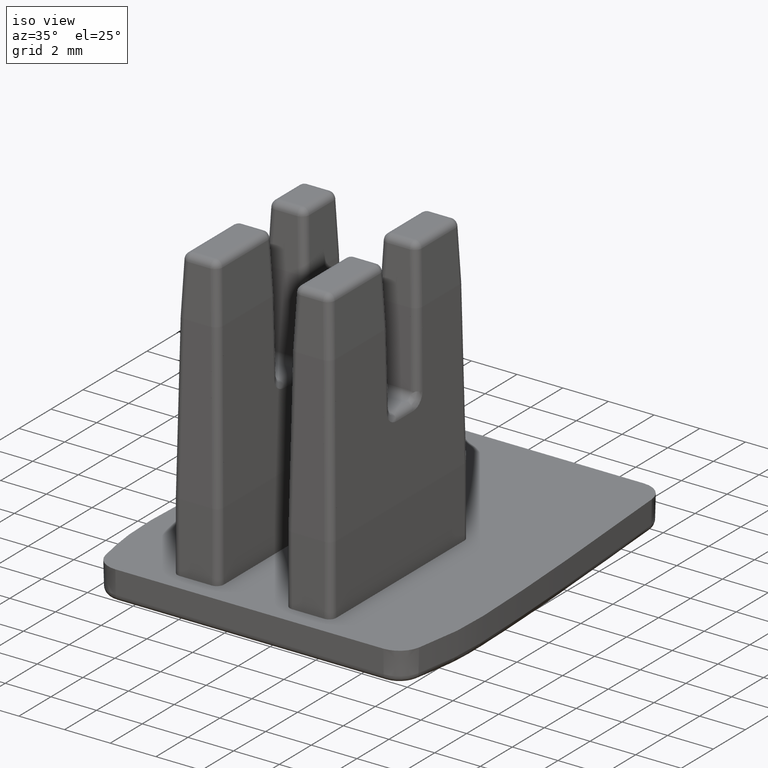
[diagram: clean part render]
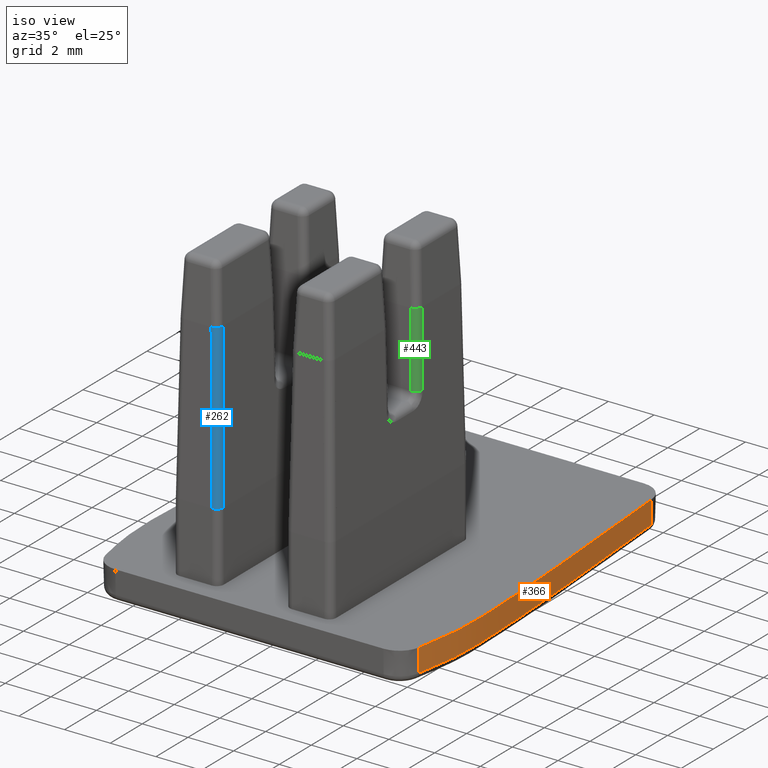
[diagram: same view with three faces highlighted in distinct colors, each labeled with its STEP entity id]
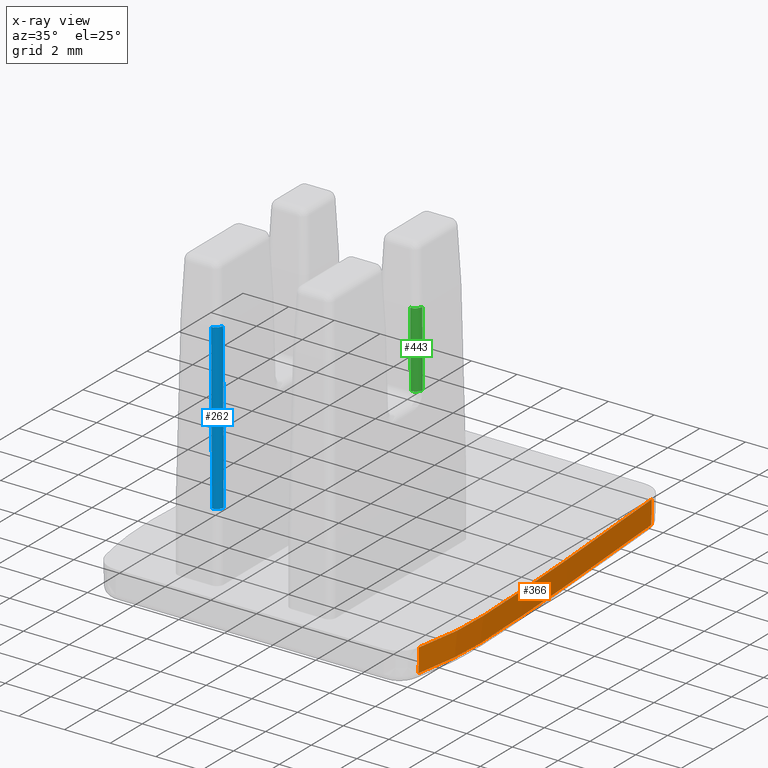
[diagram: x-ray of the same camera — body ghosted, the three highlighted faces saturated]
A machine part, iso view with three faces highlighted in distinct colors.
The next image is the same camera in x-ray (body ghosted, the three faces saturated) — at least one of them is partly hidden behind the body in this view.
Their STEP definitions:

[orange] entity #366 — the highlighted face is a freeform B-spline surface patch.
#366 = ADVANCED_FACE ( 'NONE', ( #1840 ), #545, .F. ) ;
#464 = EDGE_CURVE ( 'NONE', #3331, #3346, #537, .T. ) ;
#470 = EDGE_CURVE ( 'NONE', #3408, #3338, #530, .T. ) ;
#477 = EDGE_CURVE ( 'NONE', #3331, #3408, #535, .T. ) ;
#484 = EDGE_CURVE ( 'NONE', #3346, #3338, #536, .T. ) ;
#530 = B_SPLINE_CURVE_WITH_KNOTS ( 'NONE', 1,
 ( #814, #816 ),
 .UNSPECIFIED., .F., .F.,
 ( 2, 2 ),
 ( 0.9629988041788623000, 0.9993572903024886500 ),
 .UNSPECIFIED. ) ;
#535 = B_SPLINE_CURVE_WITH_KNOTS ( 'NONE', 3,
 ( #860, #883, #900, #884, #857, #877, #890, #856, #896, #861, #897, #891, #867, #892 ),
 .UNSPECIFIED., .F., .F.,
 ( 4, 2, 2, 2, 2, 2, 4 ),
 ( -6.000000000027529400E-008, 0.0009408673750029836000, 0.001881794750005967500, 0.002822722125008951700, 0.003763649500011935500, 0.007527359000023855900, 0.01505477800004769900 ),
 .UNSPECIFIED. ) ;
#536 = B_SPLINE_CURVE_WITH_KNOTS ( 'NONE', 3,
 ( #855, #876, #908, #944, #924, #909, #938, #911, #913, #945, #951, #946, #943, #952, #910, #959, #905, #960, #906, #937, #933, #918, #932, #925, #939, #955, #940, #961, #927, #947, #935, #941, #928, #929, #953, #954, #903, #948, #912, #915, #916, #956, #914, #904, #949, #934, #950, #942, #917, #920, #926, #957, #958, #907, #919, #921, #922, #923, #931, #1011, #1007, #1008 ),
 .UNSPECIFIED., .F., .F.,
 ( 4, 1, 1, 1, 1, 1, 2, 2, 1, 1, 1, 1, 2, 2, 1, 1, 1, 1, 1, 2, 2, 1, 1, 1, 1, 1, 1, 1, 2, 2, 1, 1, 1, 1, 1, 1, 1, 1, 2, 2, 1, 1, 1, 1, 1, 2, 2, 4 ),
 ( 0.0000000000000000000, 0.06249999999996985700, 0.09374999999995511900, 0.1093749999999481400, 0.1171874999999446400, 0.1210937499999429100, 0.1230468749999424300, 0.1249999999999419600, 0.1562499999999477600, 0.1718749999999508400, 0.1796874999999524000, 0.1835937499999528200, 0.1855468749999533700, 0.1874999999999539300, 0.2187499999999739400, 0.2343749999999839300, 0.2421874999999889000, 0.2460937499999910600, 0.2480468749999920900, 0.2490234374999925300, 0.2499999999999930100, 0.3749999999999970000, 0.4374999999999988300, 0.4687499999999997200, 0.4843750000000000600, 0.4921875000000003300, 0.4960937500000001700, 0.4980468749999997800, 0.4990234374999997200, 0.4999999999999996700, 0.6249999999999307200, 0.6874999999998964200, 0.7187499999998793200, 0.7343749999998707700, 0.7421874999998665500, 0.7460937499998644400, 0.7480468749998633300, 0.7490234374998630000, 0.7495117187498630000, 0.7499999999998630000, 0.8124999999999050800, 0.8437499999999263900, 0.8593749999999369400, 0.8671874999999422700, 0.8710937499999447100, 0.8730468749999457100, 0.8749999999999468200, 1.000000000000000000 ),
 .UNSPECIFIED. ) ;
#537 = B_SPLINE_CURVE_WITH_KNOTS ( 'NONE', 3,
 ( #850, #843, #846, #808 ),
 .UNSPECIFIED., .F., .F.,
 ( 4, 4 ),
 ( -0.001027351623817846000, 0.0000000000000000000 ),
 .UNSPECIFIED. ) ;
#545 = B_SPLINE_SURFACE_WITH_KNOTS ( 'NONE', 1, 3, ( 
 ( #1820, #1816, #1851, #1834, #1866, #1830, #1821, #1817, #1844, #1867, #1836, #1852, #1853, #1829, #1862, #1846, #1871, #1869, #1859, #1873, #1854, #1857, #1831 ),
 ( #1872, #1868, #1870, #1818, #1858, #1819, #1855, #1822, #1832, #1838, #1839, #1841, #1847, #1860, #1856, #1863, #1883, #1911, #1888, #1897, #1920, #1904, #1899 ) ),
 .UNSPECIFIED., .F., .F., .F.,
 ( 2, 2 ),
 ( 4, 2, 2, 2, 2, 2, 2, 2, 2, 3, 4 ),
 ( 0.0000000000000000000, 1.000000000000000000 ),
 ( 0.0000000000000000000, 0.5000000000000000000, 0.6250000000000000000, 0.6875000000000000000, 0.7187500000000000000, 0.7500000000000000000, 0.8125000000000000000, 0.8437500000000000000, 0.8750000000000000000, 1.000000000000000000, 1.010000000000000000 ),
 .UNSPECIFIED. ) ;
#808 = CARTESIAN_POINT ( 'NONE',  ( -231.4764434864795000, -20.00816516961819900, -36.24964550397354700 ) ) ;
#814 = CARTESIAN_POINT ( 'NONE',  ( -231.8812790038134900, -4.915975247343370200, -37.27699997542119800 ) ) ;
#816 = CARTESIAN_POINT ( 'NONE',  ( -231.8545060922604900, -4.913953368818859200, -36.24964550397354700 ) ) ;
#843 = CARTESIAN_POINT ( 'NONE',  ( -231.4940311148647500, -20.00465359442336300, -36.93454658651877800 ) ) ;
#846 = CARTESIAN_POINT ( 'NONE',  ( -231.4852373006722500, -20.00640938202077700, -36.59209604524616600 ) ) ;
#850 = CARTESIAN_POINT ( 'NONE',  ( -231.5027975091205100, -20.00290282242325200, -37.27699785862525100 ) ) ;
#855 = CARTESIAN_POINT ( 'NONE',  ( -231.4764434864795000, -20.00816516961819900, -36.24964550397354700 ) ) ;
#856 = CARTESIAN_POINT ( 'NONE',  ( -231.1468998555790800, -16.88526760609805400, -37.27699859103533000 ) ) ;
#857 = CARTESIAN_POINT ( 'NONE',  ( -231.2401636500811200, -18.45114353077253000, -37.27699858887221000 ) ) ;
#860 = CARTESIAN_POINT ( 'NONE',  ( -231.5027975091205100, -20.00290282242325200, -37.27699785862525100 ) ) ;
#861 = CARTESIAN_POINT ( 'NONE',  ( -231.1920125866276700, -14.99313133844807700, -37.27699859349856100 ) ) ;
#867 = CARTESIAN_POINT ( 'NONE',  ( -231.6909947880110100, -7.433993489473913000, -37.27699858845922200 ) ) ;
#876 = CARTESIAN_POINT ( 'NONE',  ( -231.4044956740329400, -19.64816453552575800, -36.24964550397354700 ) ) ;
#877 = CARTESIAN_POINT ( 'NONE',  ( -231.1778861121187800, -17.82687406467527000, -37.27699858804906100 ) ) ;
#883 = CARTESIAN_POINT ( 'NONE',  ( -231.4413496842523200, -19.69533812898570000, -37.27699858846190800 ) ) ;
#884 = CARTESIAN_POINT ( 'NONE',  ( -231.2826991975468300, -18.76232857696406200, -37.27699915983712500 ) ) ;
#890 = CARTESIAN_POINT ( 'NONE',  ( -231.1591816720439600, -17.51370318630225500, -37.27699858589899400 ) ) ;
#891 = CARTESIAN_POINT ( 'NONE',  ( -231.4763587967317200, -9.950383391224338700, -37.27699859004405900 ) ) ;
#892 = CARTESIAN_POINT ( 'NONE',  ( -231.8812790038134900, -4.915975247343370200, -37.27699997542119800 ) ) ;
#896 = CARTESIAN_POINT ( 'NONE',  ( -231.1515383411002600, -16.57015157544586600, -37.27699858720939800 ) ) ;
#897 = CARTESIAN_POINT ( 'NONE',  ( -231.2510370479302800, -13.73138313048279400, -37.27699858766950300 ) ) ;
#900 = CARTESIAN_POINT ( 'NONE',  ( -231.3830911993837800, -19.38342198717357300, -37.27699915450181600 ) ) ;
#903 = CARTESIAN_POINT ( 'NONE',  ( -231.2985417314164600, -12.48200921731654100, -36.24964550397355400 ) ) ;
#904 = CARTESIAN_POINT ( 'NONE',  ( -231.5494857998496300, -8.852726751006827000, -36.24964550397353900 ) ) ;
#905 = CARTESIAN_POINT ( 'NONE',  ( -231.1265669032016200, -17.22093931266918100, -36.24964550397356100 ) ) ;
#906 = CARTESIAN_POINT ( 'NONE',  ( -231.1236098522109000, -17.07099215004015800, -36.24964550397354700 ) ) ;
#907 = CARTESIAN_POINT ( 'NONE',  ( -231.6791488461912800, -7.178297631104446600, -36.24964550397354700 ) ) ;
#908 = CARTESIAN_POINT ( 'NONE',  ( -231.3138084076095700, -19.14483560955518400, -36.24964550397355400 ) ) ;
#909 = CARTESIAN_POINT ( 'NONE',  ( -231.1943165593481800, -18.25765358336899200, -36.24964550397354700 ) ) ;
#910 = CARTESIAN_POINT ( 'NONE',  ( -231.1276891103008800, -17.26997632751585200, -36.24964550397354700 ) ) ;
#911 = CARTESIAN_POINT ( 'NONE',  ( -231.1855740830106900, -18.17450548377179600, -36.24964550397355400 ) ) ;
#912 = CARTESIAN_POINT ( 'NONE',  ( -231.3301486623427100, -11.95151107690991300, -36.24964550397354700 ) ) ;
#913 = CARTESIAN_POINT ( 'NONE',  ( -231.1838948224690300, -18.15802395513788200, -36.24964550397355400 ) ) ;
#914 = CARTESIAN_POINT ( 'NONE',  ( -231.5373758091472800, -9.012361806651899300, -36.24964550397353900 ) ) ;
#915 = CARTESIAN_POINT ( 'NONE',  ( -231.3862018922427200, -11.08916405157859800, -36.24964550397355400 ) ) ;
#916 = CARTESIAN_POINT ( 'NONE',  ( -231.4683890555185700, -9.938554433701467500, -36.24964550397354700 ) ) ;
#917 = CARTESIAN_POINT ( 'NONE',  ( -231.5613289319456700, -8.697367159496323600, -36.24964550397355400 ) ) ;
#918 = CARTESIAN_POINT ( 'NONE',  ( -231.1289435130762500, -16.41485394494217700, -36.24964550397354700 ) ) ;
#919 = CARTESIAN_POINT ( 'NONE',  ( -231.6935385215177200, -6.994121111255874500, -36.24964550397353900 ) ) ;
#920 = CARTESIAN_POINT ( 'NONE',  ( -231.5616607756324800, -8.693024517955896300, -36.24964550397355400 ) ) ;
#921 = CARTESIAN_POINT ( 'NONE',  ( -231.7009462987912500, -6.899352905562928100, -36.24964550397353900 ) ) ;
#922 = CARTESIAN_POINT ( 'NONE',  ( -231.7041666903964200, -6.858163686172666500, -36.24964550397355400 ) ) ;
#923 = CARTESIAN_POINT ( 'NONE',  ( -231.7063237581145400, -6.830576590113986800, -36.24964550397353900 ) ) ;
#924 = CARTESIAN_POINT ( 'NONE',  ( -231.2076347479177800, -18.37636828057633700, -36.24964550397355400 ) ) ;
#925 = CARTESIAN_POINT ( 'NONE',  ( -231.1316746419669000, -16.29642754496840200, -36.24964550397354700 ) ) ;
#926 = CARTESIAN_POINT ( 'NONE',  ( -231.5758415852974700, -8.507467347126997500, -36.24964550397355400 ) ) ;
#927 = CARTESIAN_POINT ( 'NONE',  ( -231.1794568777634400, -14.76961384670631900, -36.24964550397354700 ) ) ;
#928 = CARTESIAN_POINT ( 'NONE',  ( -231.2903700144432000, -12.62028733071779400, -36.24964550397354700 ) ) ;
#929 = CARTESIAN_POINT ( 'NONE',  ( -231.2947512830732300, -12.54590545924320500, -36.24964550397355400 ) ) ;
#931 = CARTESIAN_POINT ( 'NONE',  ( -231.7075125010030400, -6.815374792754949100, -36.24964550397353900 ) ) ;
#932 = CARTESIAN_POINT ( 'NONE',  ( -231.1307144256909400, -16.33627472893267900, -36.24964550397355400 ) ) ;
#933 = CARTESIAN_POINT ( 'NONE',  ( -231.1259997675950600, -16.56755176928492500, -36.24964550397354700 ) ) ;
#934 = CARTESIAN_POINT ( 'NONE',  ( -231.5586830800823200, -8.732012405934868900, -36.24964550397354700 ) ) ;
#935 = CARTESIAN_POINT ( 'NONE',  ( -231.2650093346346700, -13.06286947957991500, -36.24964550397354700 ) ) ;
#937 = CARTESIAN_POINT ( 'NONE',  ( -231.1225045956256000, -16.85510498726542400, -36.24964550397355400 ) ) ;
#938 = CARTESIAN_POINT ( 'NONE',  ( -231.1881264744969800, -18.19929943379631300, -36.24964550397355400 ) ) ;
#939 = CARTESIAN_POINT ( 'NONE',  ( -231.1321021832211500, -16.27923069984952800, -36.24964550397355400 ) ) ;
#940 = CARTESIAN_POINT ( 'NONE',  ( -231.1325688023270000, -16.26073313962251300, -36.24964550397354700 ) ) ;
#941 = CARTESIAN_POINT ( 'NONE',  ( -231.2817398960363300, -12.76852120509763800, -36.24964550397353900 ) ) ;
#942 = CARTESIAN_POINT ( 'NONE',  ( -231.5608874523261700, -8.703145708173366300, -36.24964550397355400 ) ) ;
#943 = CARTESIAN_POINT ( 'NONE',  ( -231.1343037659119400, -17.47586465613678500, -36.24964550397353200 ) ) ;
#944 = CARTESIAN_POINT ( 'NONE',  ( -231.2380232005246200, -18.62182326723884900, -36.24964550397353900 ) ) ;
#945 = CARTESIAN_POINT ( 'NONE',  ( -231.1832247594121800, -18.15139496137746600, -36.24964550397354700 ) ) ;
#946 = CARTESIAN_POINT ( 'NONE',  ( -231.1479195952169900, -17.75021308127248800, -36.24964550397354700 ) ) ;
#947 = CARTESIAN_POINT ( 'NONE',  ( -231.2336669134797900, -13.64308813143487200, -36.24964550397355400 ) ) ;
#948 = CARTESIAN_POINT ( 'NONE',  ( -231.2989347227971800, -12.47540818278716700, -36.24964550397355400 ) ) ;
#949 = CARTESIAN_POINT ( 'NONE',  ( -231.5556063878898400, -8.772344621276779700, -36.24964550397353200 ) ) ;
#950 = CARTESIAN_POINT ( 'NONE',  ( -231.5602255257216200, -8.711811010644702000, -36.24964550397356100 ) ) ;
#951 = CARTESIAN_POINT ( 'NONE',  ( -231.1666379136270300, -17.98512003877985100, -36.24964550397356100 ) ) ;
#952 = CARTESIAN_POINT ( 'NONE',  ( -231.1295514034696100, -17.33861786655798900, -36.24964550397354700 ) ) ;
#953 = CARTESIAN_POINT ( 'NONE',  ( -231.2969584697447900, -12.50864828993472600, -36.24964550397354700 ) ) ;
#954 = CARTESIAN_POINT ( 'NONE',  ( -231.2979079538233100, -12.49266673875155900, -36.24964550397353900 ) ) ;
#955 = CARTESIAN_POINT ( 'NONE',  ( -231.1323907707225400, -16.26773958520077200, -36.24964550397355400 ) ) ;
#956 = CARTESIAN_POINT ( 'NONE',  ( -231.5136805692546300, -9.327115102681917200, -36.24964550397354700 ) ) ;
#957 = CARTESIAN_POINT ( 'NONE',  ( -231.6047354124054600, -8.133279787151261400, -36.24964550397353900 ) ) ;
#958 = CARTESIAN_POINT ( 'NONE',  ( -231.6520730124200900, -7.525211104652372600, -36.24964550397354700 ) ) ;
#959 = CARTESIAN_POINT ( 'NONE',  ( -231.1270011035256000, -17.24055463701507000, -36.24964550397355400 ) ) ;
#960 = CARTESIAN_POINT ( 'NONE',  ( -231.1263293814768900, -17.20946835119680100, -36.24964550397356100 ) ) ;
#961 = CARTESIAN_POINT ( 'NONE',  ( -231.1475193727385100, -15.67707316533020500, -36.24964550397353900 ) ) ;
#1007 = CARTESIAN_POINT ( 'NONE',  ( -231.8200770233380600, -5.368270208030304900, -36.24964550397354700 ) ) ;
#1008 = CARTESIAN_POINT ( 'NONE',  ( -231.8545060922604900, -4.913953368818859200, -36.24964550397354700 ) ) ;
#1011 = CARTESIAN_POINT ( 'NONE',  ( -231.7714422631224200, -5.997887771923745800, -36.24964550397356800 ) ) ;
#1175 = CARTESIAN_POINT ( 'NONE',  ( -231.5027975091205100, -20.00290282242325200, -37.27699785862525100 ) ) ;
#1210 = CARTESIAN_POINT ( 'NONE',  ( -231.8545060922604900, -4.913953368818859200, -36.24964550397354700 ) ) ;
#1211 = CARTESIAN_POINT ( 'NONE',  ( -231.4764434864795000, -20.00816516961819900, -36.24964550397354700 ) ) ;
#1245 = CARTESIAN_POINT ( 'NONE',  ( -231.8812790038134900, -4.915975247343370200, -37.27699997542119800 ) ) ;
#1816 = CARTESIAN_POINT ( 'NONE',  ( -231.6636197488500100, -7.432926039325679700, -36.23148773845550600 ) ) ;
#1817 = CARTESIAN_POINT ( 'NONE',  ( -231.1559535071575100, -15.46942287865099900, -36.23148773846255500 ) ) ;
#1818 = CARTESIAN_POINT ( 'NONE',  ( -231.9998311935889900, -13.14445304505444100, -64.48769953427699900 ) ) ;
#1819 = CARTESIAN_POINT ( 'NONE',  ( -231.9246500496070100, -14.71166890443868200, -64.48769953427680000 ) ) ;
#1820 = CARTESIAN_POINT ( 'NONE',  ( -231.8539261897395000, -4.913909558393180000, -36.23148773846425300 ) ) ;
#1821 = CARTESIAN_POINT ( 'NONE',  ( -231.1726858294339900, -14.99636273826560100, -36.23148773846419600 ) ) ;
#1822 = CARTESIAN_POINT ( 'NONE',  ( -231.8954482438285300, -15.49438458374290000, -64.48769953427670000 ) ) ;
#1829 = CARTESIAN_POINT ( 'NONE',  ( -231.1287895738365100, -17.35875146195545000, -36.23148773846345000 ) ) ;
#1830 = CARTESIAN_POINT ( 'NONE',  ( -231.1853730445300000, -14.68087710957875900, -36.23148773846210700 ) ) ;
#1831 = CARTESIAN_POINT ( 'NONE',  ( -231.5056585695930100, -20.15717558527694900, -36.23148773845625200 ) ) ;
#1832 = CARTESIAN_POINT ( 'NONE',  ( -231.8903867344515100, -15.64972552313889900, -64.48769953427670000 ) ) ;
#1834 = CARTESIAN_POINT ( 'NONE',  ( -231.2610377944405100, -13.10360691630226000, -36.23148773846120500 ) ) ;
#1836 = CARTESIAN_POINT ( 'NONE',  ( -231.1362069152494900, -16.09994768401005100, -36.23148773846244800 ) ) ;
#1838 = CARTESIAN_POINT ( 'NONE',  ( -231.8806663113060200, -15.96524128714454900, -64.48769953427670000 ) ) ;
#1839 = CARTESIAN_POINT ( 'NONE',  ( -231.8758104657729900, -16.12158255846949800, -64.48769953427658700 ) ) ;
#1840 = FACE_OUTER_BOUND ( 'NONE', #3549, .T. ) ;
#1841 = CARTESIAN_POINT ( 'NONE',  ( -231.8639247096770100, -16.58614977473779800, -64.48769953427658700 ) ) ;
#1844 = CARTESIAN_POINT ( 'NONE',  ( -231.1508185055000100, -15.62707645491194900, -36.23148773846359900 ) ) ;
#1846 = CARTESIAN_POINT ( 'NONE',  ( -231.1534515448855100, -17.82888738017419800, -36.23148773846175200 ) ) ;
#1847 = CARTESIAN_POINT ( 'NONE',  ( -231.8596281421035000, -16.88991272649565200, -64.48769953427439800 ) ) ;
#1851 = CARTESIAN_POINT ( 'NONE',  ( -231.4488273576089900, -9.951091445811719900, -36.23148773847215400 ) ) ;
#1852 = CARTESIAN_POINT ( 'NONE',  ( -231.1241131068329700, -16.57264684849014800, -36.23148773846410400 ) ) ;
#1853 = CARTESIAN_POINT ( 'NONE',  ( -231.1195234865934900, -16.88753964941495400, -36.23148773846180900 ) ) ;
#1854 = CARTESIAN_POINT ( 'NONE',  ( -231.4858345077034900, -20.05790467074015400, -36.23148773846045100 ) ) ;
#1855 = CARTESIAN_POINT ( 'NONE',  ( -231.9120539732755000, -15.02490350553880000, -64.48769953427670000 ) ) ;
#1856 = CARTESIAN_POINT ( 'NONE',  ( -231.8738387214784800, -17.48168221552499800, -64.48769953427759600 ) ) ;
#1857 = CARTESIAN_POINT ( 'NONE',  ( -231.4957465386484900, -20.10754012800854800, -36.23148773845834800 ) ) ;
#1858 = CARTESIAN_POINT ( 'NONE',  ( -231.9665062360500100, -13.77156161886850000, -64.48769953427680000 ) ) ;
#1859 = CARTESIAN_POINT ( 'NONE',  ( -231.3520220899484900, -19.38782599761664800, -36.23148773848890200 ) ) ;
#1860 = CARTESIAN_POINT ( 'NONE',  ( -231.8683951403334900, -17.33574420070310000, -64.48769953427759600 ) ) ;
#1862 = CARTESIAN_POINT ( 'NONE',  ( -231.1346291371555100, -17.51563068834550300, -36.23148773846394700 ) ) ;
#1863 = CARTESIAN_POINT ( 'NONE',  ( -231.8914077097520000, -17.77407855329849800, -64.48769953427539300 ) ) ;
#1866 = CARTESIAN_POINT ( 'NONE',  ( -231.2275122182150000, -13.73441381326654000, -36.23148773846539700 ) ) ;
#1867 = CARTESIAN_POINT ( 'NONE',  ( -231.1411064288115000, -15.94232130054424900, -36.23148773846249800 ) ) ;
#1868 = CARTESIAN_POINT ( 'NONE',  ( -232.4010721041964900, -7.493432195007529600, -64.48769953426040000 ) ) ;
#1869 = CARTESIAN_POINT ( 'NONE',  ( -231.2440737170204800, -18.76625616490275000, -36.23148773846280300 ) ) ;
#1870 = CARTESIAN_POINT ( 'NONE',  ( -232.1866821837660100, -10.00769385979008100, -64.48769953427699900 ) ) ;
#1871 = CARTESIAN_POINT ( 'NONE',  ( -231.1661785533140100, -17.98528264384789900, -36.23148773846280300 ) ) ;
#1872 = CARTESIAN_POINT ( 'NONE',  ( -232.5917386039579900, -4.969649747052259600, -64.48769953427789400 ) ) ;
#1873 = CARTESIAN_POINT ( 'NONE',  ( -231.4759224767584800, -20.00826921347174900, -36.23148773846260400 ) ) ;
#1883 = CARTESIAN_POINT ( 'NONE',  ( -231.9033316207130000, -17.92078352198395300, -64.48769953427640200 ) ) ;
#1888 = CARTESIAN_POINT ( 'NONE',  ( -232.0800231905149900, -19.25500924004669700, -64.48769953431130400 ) ) ;
#1897 = CARTESIAN_POINT ( 'NONE',  ( -232.2015110831644900, -19.86337165841749900, -64.48769953427620300 ) ) ;
#1899 = CARTESIAN_POINT ( 'NONE',  ( -232.2306681774005000, -20.00937863882650100, -64.48769953426779000 ) ) ;
#1904 = CARTESIAN_POINT ( 'NONE',  ( -232.2209491459885000, -19.96070964535685000, -64.48769953427059000 ) ) ;
#1911 = CARTESIAN_POINT ( 'NONE',  ( -231.9767701315775000, -18.65707483148034700, -64.48769953427640200 ) ) ;
#1920 = CARTESIAN_POINT ( 'NONE',  ( -232.2112301145764700, -19.91204065188720000, -64.48769953427340300 ) ) ;
#2613 = ORIENTED_EDGE ( 'NONE', *, *, #470, .T. ) ;
#2629 = ORIENTED_EDGE ( 'NONE', *, *, #464, .F. ) ;
#2647 = ORIENTED_EDGE ( 'NONE', *, *, #484, .F. ) ;
#2658 = ORIENTED_EDGE ( 'NONE', *, *, #477, .T. ) ;
#3331 = VERTEX_POINT ( 'NONE', #1175 ) ;
#3338 = VERTEX_POINT ( 'NONE', #1210 ) ;
#3346 = VERTEX_POINT ( 'NONE', #1211 ) ;
#3408 = VERTEX_POINT ( 'NONE', #1245 ) ;
#3549 = EDGE_LOOP ( 'NONE', ( #2629, #2658, #2613, #2647 ) ) ;

[blue] entity #262 — the highlighted cylindrical surface (edge-blend (fillet) strip) has radius 0.3045 mm, axis along (0.0174, -0.0174, -0.9997).
#12 = EDGE_CURVE ( 'NONE', #3421, #3356, #3774, .T. ) ;
#18 = EDGE_CURVE ( 'NONE', #3396, #3400, #3782, .T. ) ;
#68 = EDGE_CURVE ( 'NONE', #3378, #3380, #4674, .T. ) ;
#76 = EDGE_CURVE ( 'NONE', #3378, #3396, #3960, .T. ) ;
#177 = EDGE_CURVE ( 'NONE', #3400, #3421, #4659, .T. ) ;
#262 = ADVANCED_FACE ( 'NONE', ( #4579 ), #4550, .T. ) ;
#486 = EDGE_CURVE ( 'NONE', #3356, #3380, #991, .T. ) ;
#601 = VECTOR ( 'NONE', #3841, 1000.000000000000000 ) ;
#605 = VECTOR ( 'NONE', #3787, 1000.000000000000000 ) ;
#640 = VECTOR ( 'NONE', #4014, 1000.000000000000000 ) ;
#974 = DIRECTION ( 'NONE',  ( 0.01744974916068264100, -0.01744974916079379200, -0.9996954598818855700 ) ) ;
#979 = CARTESIAN_POINT ( 'NONE',  ( -240.2713269174505200, -19.65729778191055000, -33.20995652541494500 ) ) ;
#991 = LINE ( 'NONE', #979, #5036 ) ;
#1178 = CARTESIAN_POINT ( 'NONE',  ( -240.3954378579894900, -19.53318684137055100, -26.09964550397140200 ) ) ;
#1226 = CARTESIAN_POINT ( 'NONE',  ( -240.2714196216745100, -19.65720507415520000, -33.20464550397130000 ) ) ;
#1231 = CARTESIAN_POINT ( 'NONE',  ( -240.6996482034354900, -19.83764046454575000, -26.09964550397135200 ) ) ;
#1237 = CARTESIAN_POINT ( 'NONE',  ( -240.5758732483810100, -19.96165870086139900, -33.20464550397124300 ) ) ;
#1238 = CARTESIAN_POINT ( 'NONE',  ( -240.3954378579894900, -19.53343011909949900, -26.09964550397140200 ) ) ;
#1265 = CARTESIAN_POINT ( 'NONE',  ( -240.6998914811644900, -19.83764046454575000, -26.09964550397135200 ) ) ;
#2731 = ORIENTED_EDGE ( 'NONE', *, *, #68, .T. ) ;
#2732 = ORIENTED_EDGE ( 'NONE', *, *, #177, .F. ) ;
#2741 = ORIENTED_EDGE ( 'NONE', *, *, #12, .F. ) ;
#2744 = ORIENTED_EDGE ( 'NONE', *, *, #76, .F. ) ;
#2763 = ORIENTED_EDGE ( 'NONE', *, *, #486, .F. ) ;
#2787 = ORIENTED_EDGE ( 'NONE', *, *, #18, .F. ) ;
#3356 = VERTEX_POINT ( 'NONE', #1178 ) ;
#3378 = VERTEX_POINT ( 'NONE', #1237 ) ;
#3380 = VERTEX_POINT ( 'NONE', #1226 ) ;
#3396 = VERTEX_POINT ( 'NONE', #1265 ) ;
#3400 = VERTEX_POINT ( 'NONE', #1231 ) ;
#3421 = VERTEX_POINT ( 'NONE', #1238 ) ;
#3610 = EDGE_LOOP ( 'NONE', ( #2763, #2741, #2732, #2787, #2744, #2731 ) ) ;
#3774 = LINE ( 'NONE', #3781, #605 ) ;
#3781 = CARTESIAN_POINT ( 'NONE',  ( -240.3954378579894900, -19.96165870086064600, -26.09964550397135200 ) ) ;
#3782 = LINE ( 'NONE', #3848, #601 ) ;
#3787 = DIRECTION ( 'NONE',  ( 6.982962677686270700E-015, 1.000000000000000000, -1.110223024625280100E-013 ) ) ;
#3841 = DIRECTION ( 'NONE',  ( 1.000000000000000000, -6.982962677686270700E-015, 3.876322972433140000E-028 ) ) ;
#3848 = CARTESIAN_POINT ( 'NONE',  ( -242.3014196216744800, -19.83764046454575000, -26.09964550397135200 ) ) ;
#3947 = CARTESIAN_POINT ( 'NONE',  ( -240.5763986629294800, -19.96113328278180200, -33.17454432234055200 ) ) ;
#3950 = CARTESIAN_POINT ( 'NONE',  ( -240.5758732483810100, -19.96165870086139900, -33.20464550397124300 ) ) ;
#3951 = CARTESIAN_POINT ( 'NONE',  ( -240.3975443549766500, -19.96163154007771800, -33.20308940446860600 ) ) ;
#3952 = CARTESIAN_POINT ( 'NONE',  ( -240.2714196216745100, -19.65720507415520000, -33.20464550397130000 ) ) ;
#3960 = LINE ( 'NONE', #3947, #640 ) ;
#3972 = CARTESIAN_POINT ( 'NONE',  ( -240.2714467824584100, -19.83553396755953500, -33.20308940446862100 ) ) ;
#4014 = DIRECTION ( 'NONE',  ( -0.01744974916068259300, 0.01744974916079384400, 0.9996954598818855700 ) ) ;
#4285 = CARTESIAN_POINT ( 'NONE',  ( -240.3956750890595500, -19.71146532376859600, -26.09421049950983800 ) ) ;
#4319 = CARTESIAN_POINT ( 'NONE',  ( -240.3954378579894900, -19.53343011909949900, -26.09964550397140200 ) ) ;
#4321 = CARTESIAN_POINT ( 'NONE',  ( -240.6996482034354900, -19.83764046454575000, -26.09964550397135200 ) ) ;
#4322 = CARTESIAN_POINT ( 'NONE',  ( -240.5216129987663300, -19.83740323347540300, -26.09421049950981300 ) ) ;
#4550 = CYLINDRICAL_SURFACE ( 'NONE', #4822, 0.3045000000000115400 ) ;
#4575 = CARTESIAN_POINT ( 'NONE',  ( -240.5757805406254900, -19.65729778191055000, -33.21527078317490100 ) ) ;
#4579 = FACE_OUTER_BOUND ( 'NONE', #3610, .T. ) ;
#4588 = DIRECTION ( 'NONE',  ( 0.01744974916068261000, -0.01744974916079380900, -0.9996954598818856800 ) ) ;
#4644 = DIRECTION ( 'NONE',  ( -0.9998476951563912700, 0.0000000000000000000, -0.01745240643728281400 ) ) ;
#4659 =( BOUNDED_CURVE ( )  B_SPLINE_CURVE ( 3, ( #4321, #4322, #4285, #4319 ),
 .UNSPECIFIED., .F., .F. ) 
 B_SPLINE_CURVE_WITH_KNOTS ( ( 4, 4 ),
 ( 2.357145444065075400, 3.926039863114452600 ),
 .UNSPECIFIED. ) 
 CURVE ( )  GEOMETRIC_REPRESENTATION_ITEM ( )  RATIONAL_B_SPLINE_CURVE ( ( 1.000000000000000000, 0.8051859248628174800, 0.8051859248628174800, 1.000000000000000000 ) ) 
 REPRESENTATION_ITEM ( '' )  );
#4674 =( BOUNDED_CURVE ( )  B_SPLINE_CURVE ( 3, ( #3950, #3951, #3972, #3952 ),
 .UNSPECIFIED., .F., .F. ) 
 B_SPLINE_CURVE_WITH_KNOTS ( ( 4, 4 ),
 ( 2.356346777641328900, 3.926838529537074700 ),
 .UNSPECIFIED. ) 
 CURVE ( )  GEOMETRIC_REPRESENTATION_ITEM ( )  RATIONAL_B_SPLINE_CURVE ( ( 1.000000000000000000, 0.8048096376499958000, 0.8048096376499958000, 1.000000000000000000 ) ) 
 REPRESENTATION_ITEM ( '' )  );
#4822 = AXIS2_PLACEMENT_3D ( 'NONE', #4575, #4588, #4644 ) ;
#5036 = VECTOR ( 'NONE', #974, 1000.000000000000000 ) ;

[green] entity #443 — the highlighted cylindrical surface (edge-blend (fillet) strip) has radius 0.3045 mm, axis along (0.0174, -0.0174, -0.9997).
#146 = EDGE_CURVE ( 'NONE', #3462, #3456, #4678, .T. ) ;
#170 = EDGE_CURVE ( 'NONE', #3443, #3456, #4253, .T. ) ;
#217 = EDGE_CURVE ( 'NONE', #3512, #3453, #4855, .T. ) ;
#221 = EDGE_CURVE ( 'NONE', #3497, #3512, #4427, .T. ) ;
#247 = EDGE_CURVE ( 'NONE', #3453, #3443, #4545, .T. ) ;
#250 = EDGE_CURVE ( 'NONE', #3462, #3497, #4576, .T. ) ;
#443 = ADVANCED_FACE ( 'NONE', ( #768 ), #804, .T. ) ;
#760 = DIRECTION ( 'NONE',  ( 0.01744974916068264100, -0.01744974916079384400, -0.9996954598818855700 ) ) ;
#768 = FACE_OUTER_BOUND ( 'NONE', #3662, .T. ) ;
#769 = CARTESIAN_POINT ( 'NONE',  ( -235.6513770634625200, -14.22870125907350000, -33.30999842639920400 ) ) ;
#788 = DIRECTION ( 'NONE',  ( -0.9998476951563912700, 5.696957228166638200E-015, -0.01745240643728281400 ) ) ;
#804 = CYLINDRICAL_SURFACE ( 'NONE', #4978, 0.3045000000000115400 ) ;
#1285 = CARTESIAN_POINT ( 'NONE',  ( -235.7768982034355100, -14.40739046454578100, -26.09964550397195300 ) ) ;
#1288 = CARTESIAN_POINT ( 'NONE',  ( -235.4726878579895100, -14.10318011909954100, -26.09964550397199900 ) ) ;
#1290 = CARTESIAN_POINT ( 'NONE',  ( -235.7203546695634800, -14.46417727614730000, -29.35295976173184900 ) ) ;
#1327 = CARTESIAN_POINT ( 'NONE',  ( -235.7771414811645100, -14.40739046454578100, -26.09964550397195300 ) ) ;
#1341 = CARTESIAN_POINT ( 'NONE',  ( -235.4726878579895100, -14.10293684137056000, -26.09964550397199900 ) ) ;
#1369 = CARTESIAN_POINT ( 'NONE',  ( -235.4159010463885100, -14.15972365297208000, -29.35295976173190300 ) ) ;
#3103 = ORIENTED_EDGE ( 'NONE', *, *, #221, .F. ) ;
#3113 = ORIENTED_EDGE ( 'NONE', *, *, #250, .F. ) ;
#3140 = ORIENTED_EDGE ( 'NONE', *, *, #247, .F. ) ;
#3147 = ORIENTED_EDGE ( 'NONE', *, *, #146, .T. ) ;
#3185 = ORIENTED_EDGE ( 'NONE', *, *, #217, .F. ) ;
#3226 = ORIENTED_EDGE ( 'NONE', *, *, #170, .F. ) ;
#3443 = VERTEX_POINT ( 'NONE', #1327 ) ;
#3453 = VERTEX_POINT ( 'NONE', #1290 ) ;
#3456 = VERTEX_POINT ( 'NONE', #1285 ) ;
#3462 = VERTEX_POINT ( 'NONE', #1288 ) ;
#3497 = VERTEX_POINT ( 'NONE', #1341 ) ;
#3512 = VERTEX_POINT ( 'NONE', #1369 ) ;
#3662 = EDGE_LOOP ( 'NONE', ( #3226, #3140, #3185, #3103, #3113, #3147 ) ) ;
#4198 = CARTESIAN_POINT ( 'NONE',  ( -235.4726878579895100, -14.10318011909954100, -26.09964550397199900 ) ) ;
#4210 = CARTESIAN_POINT ( 'NONE',  ( -235.5988629987664100, -14.40715323347549400, -26.09421049950941900 ) ) ;
#4222 = CARTESIAN_POINT ( 'NONE',  ( -235.4729250890595400, -14.28121532376865800, -26.09421049950943300 ) ) ;
#4234 = CARTESIAN_POINT ( 'NONE',  ( -235.7768982034355100, -14.40739046454578100, -26.09964550397195300 ) ) ;
#4253 = LINE ( 'NONE', #4314, #4773 ) ;
#4300 = DIRECTION ( 'NONE',  ( 1.000000000000000000, -6.982962677686270700E-015, 3.876322972433140000E-028 ) ) ;
#4314 = CARTESIAN_POINT ( 'NONE',  ( -237.3786696216744800, -14.40739046454576000, -26.09964550397195300 ) ) ;
#4427 = LINE ( 'NONE', #4428, #4825 ) ;
#4428 = CARTESIAN_POINT ( 'NONE',  ( -235.3469234402875300, -14.22870125907350000, -33.30468416863935500 ) ) ;
#4432 = CARTESIAN_POINT ( 'NONE',  ( -235.7203546695634800, -14.15972365297208000, -29.35827401949184800 ) ) ;
#4435 = DIRECTION ( 'NONE',  ( 0.01744974916068264100, -0.01744974916079384400, -0.9996954598818855700 ) ) ;
#4454 = DIRECTION ( 'NONE',  ( 0.01744974916064615000, -0.01744974916075089900, -0.9996954598818870200 ) ) ;
#4456 = DIRECTION ( 'NONE',  ( -0.9998476951563918200, 5.696957228166641400E-015, -0.01745240643724864400 ) ) ;
#4518 = CARTESIAN_POINT ( 'NONE',  ( -235.6536486629289900, -14.53088328278182000, -33.17454432234114800 ) ) ;
#4545 = LINE ( 'NONE', #4518, #4824 ) ;
#4546 = DIRECTION ( 'NONE',  ( -0.01744974916068265500, 0.01744974916079380900, 0.9996954598818855700 ) ) ;
#4563 = DIRECTION ( 'NONE',  ( 6.982962677686270700E-015, 1.000000000000000000, -1.110223024625280100E-013 ) ) ;
#4576 = LINE ( 'NONE', #4590, #4830 ) ;
#4590 = CARTESIAN_POINT ( 'NONE',  ( -235.4726878579895100, -14.53140870086083900, -26.09964550397195300 ) ) ;
#4678 =( BOUNDED_CURVE ( )  B_SPLINE_CURVE ( 3, ( #4198, #4222, #4210, #4234 ),
 .UNSPECIFIED., .F., .T. ) 
 B_SPLINE_CURVE_WITH_KNOTS ( ( 4, 4 ),
 ( 2.357145444065010100, 3.926039863114730600 ),
 .UNSPECIFIED. ) 
 CURVE ( )  GEOMETRIC_REPRESENTATION_ITEM ( )  RATIONAL_B_SPLINE_CURVE ( ( 1.000000000000000000, 0.8051859248627366600, 0.8051859248627366600, 1.000000000000000000 ) ) 
 REPRESENTATION_ITEM ( '' )  );
#4773 = VECTOR ( 'NONE', #4300, 1000.000000000000000 ) ;
#4816 = AXIS2_PLACEMENT_3D ( 'NONE', #4432, #4454, #4456 ) ;
#4824 = VECTOR ( 'NONE', #4546, 1000.000000000000100 ) ;
#4825 = VECTOR ( 'NONE', #4435, 1000.000000000000000 ) ;
#4830 = VECTOR ( 'NONE', #4563, 1000.000000000000000 ) ;
#4855 = CIRCLE ( 'NONE', #4816, 0.3045000000000113700 ) ;
#4978 = AXIS2_PLACEMENT_3D ( 'NONE', #769, #760, #788 ) ;